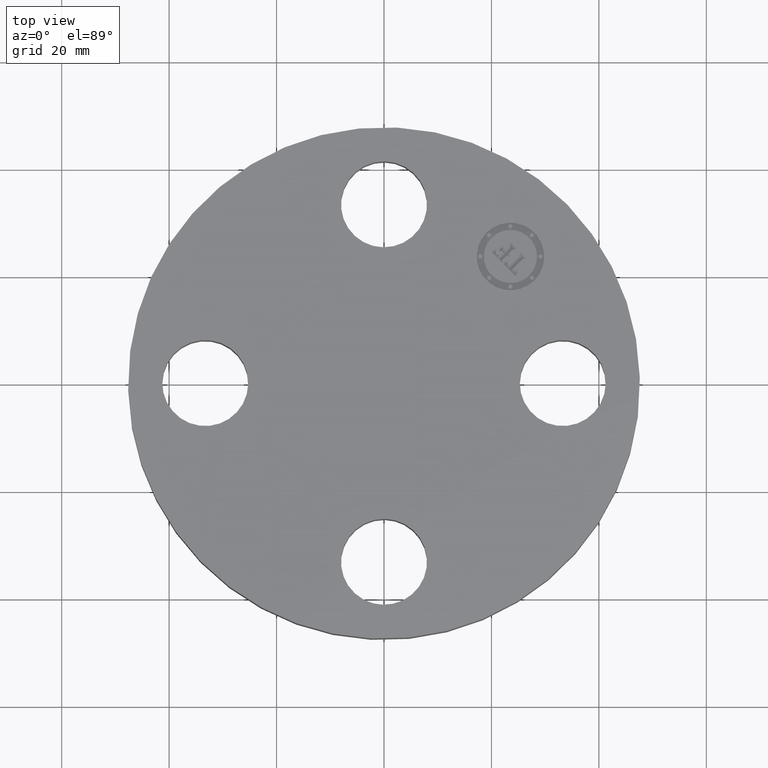
[diagram: clean part render]
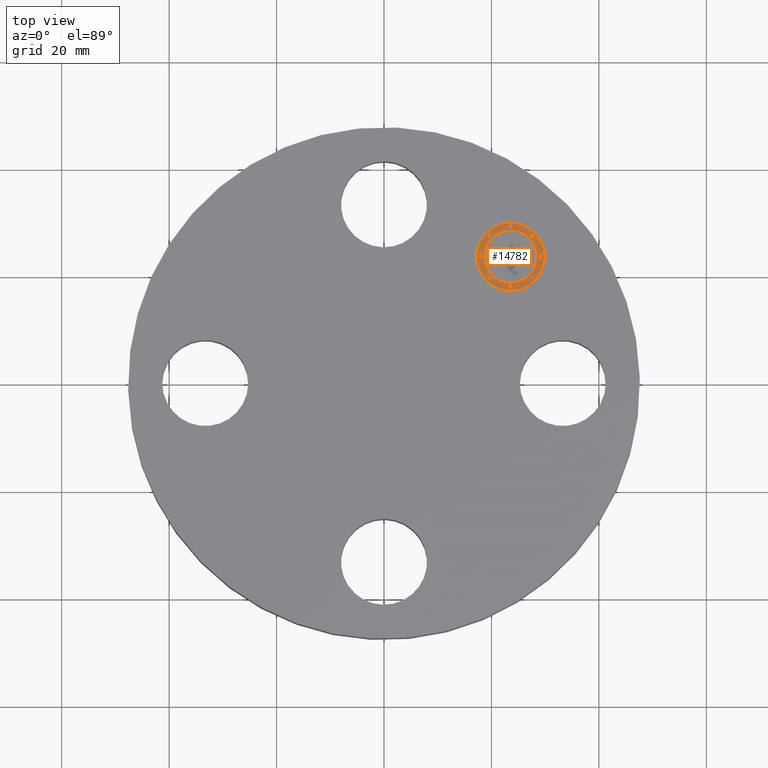
[diagram: same view with one face highlighted and labeled with its STEP entity id]
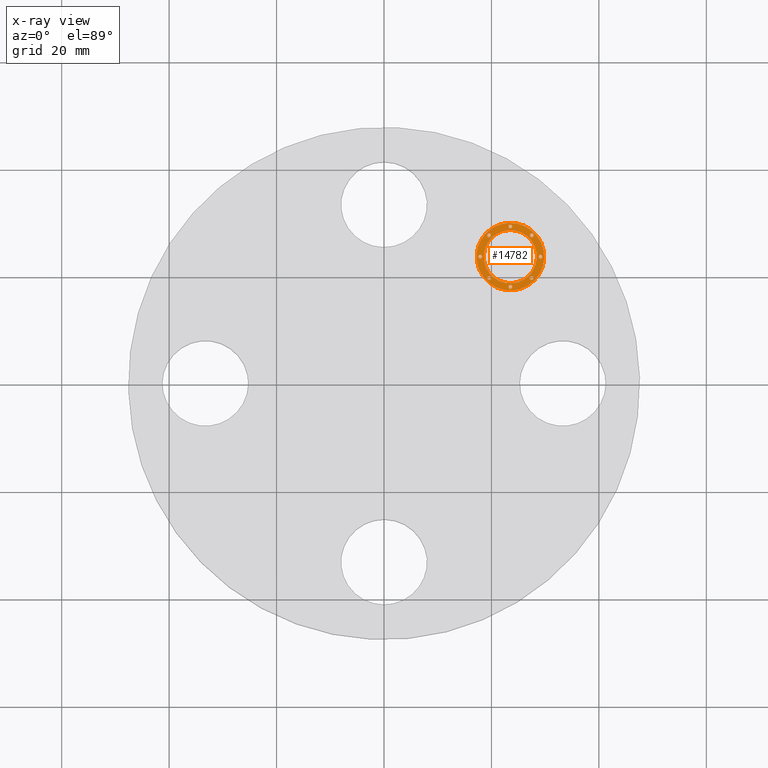
[diagram: x-ray of the same camera — body ghosted, the highlighted face saturated]
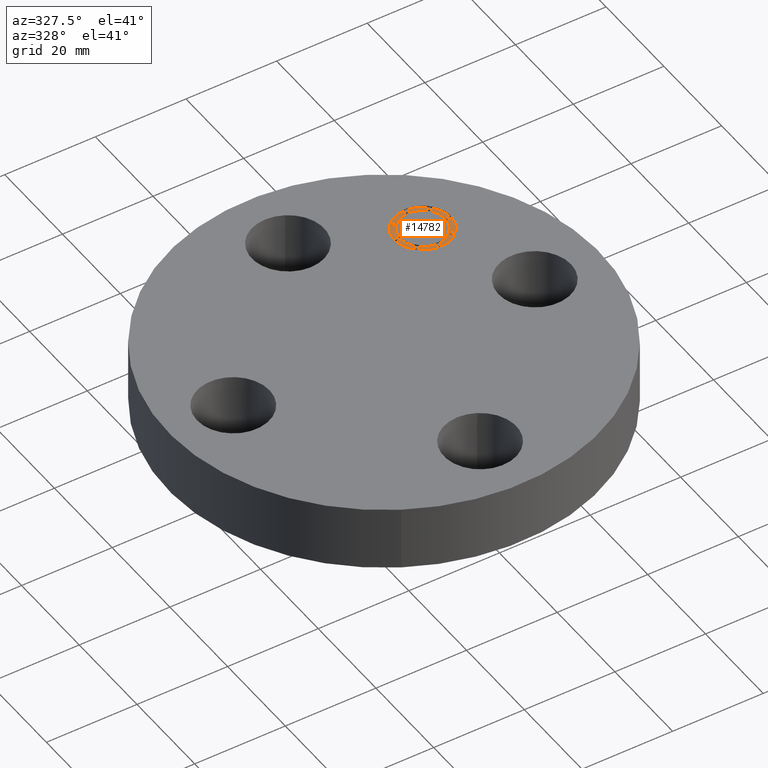
[diagram: same view with one face highlighted and labeled with its STEP entity id]
A machine part, top view. The second image highlights one B-rep face of the part: STEP entity #14782.
The next image is the same camera in x-ray: the body ghosted, the highlighted face saturated — about 0% of this face is hidden behind the body in this view.
A second angle (auxiliary view) of the same face is appended — the face is thin or edge-on in the first view.
In plain terms, the highlighted planar face has unit normal (0, -0, 1).
Its self-contained STEP definition (entity closure, byte-faithful):
#3433=AXIS2_PLACEMENT_3D('Plane Axis2P3D',#3430,#3431,#3432) ;
#14604=AXIS2_PLACEMENT_3D('Circle Axis2P3D',#14602,#14603,$) ;
#14613=AXIS2_PLACEMENT_3D('Circle Axis2P3D',#14611,#14612,$) ;
#14622=AXIS2_PLACEMENT_3D('Circle Axis2P3D',#14620,#14621,$) ;
#14631=AXIS2_PLACEMENT_3D('Circle Axis2P3D',#14629,#14630,$) ;
#14640=AXIS2_PLACEMENT_3D('Circle Axis2P3D',#14638,#14639,$) ;
#14649=AXIS2_PLACEMENT_3D('Circle Axis2P3D',#14647,#14648,$) ;
#14658=AXIS2_PLACEMENT_3D('Circle Axis2P3D',#14656,#14657,$) ;
#14667=AXIS2_PLACEMENT_3D('Circle Axis2P3D',#14665,#14666,$) ;
#14676=AXIS2_PLACEMENT_3D('Circle Axis2P3D',#14674,#14675,$) ;
#14685=AXIS2_PLACEMENT_3D('Circle Axis2P3D',#14683,#14684,$) ;
#14694=AXIS2_PLACEMENT_3D('Circle Axis2P3D',#14692,#14693,$) ;
#14703=AXIS2_PLACEMENT_3D('Circle Axis2P3D',#14701,#14702,$) ;
#14712=AXIS2_PLACEMENT_3D('Circle Axis2P3D',#14710,#14711,$) ;
#14721=AXIS2_PLACEMENT_3D('Circle Axis2P3D',#14719,#14720,$) ;
#14730=AXIS2_PLACEMENT_3D('Circle Axis2P3D',#14728,#14729,$) ;
#14739=AXIS2_PLACEMENT_3D('Circle Axis2P3D',#14737,#14738,$) ;
#14748=AXIS2_PLACEMENT_3D('Circle Axis2P3D',#14746,#14747,$) ;
#14757=AXIS2_PLACEMENT_3D('Circle Axis2P3D',#14755,#14756,$) ;
#14766=AXIS2_PLACEMENT_3D('Circle Axis2P3D',#14764,#14765,$) ;
#14775=AXIS2_PLACEMENT_3D('Circle Axis2P3D',#14773,#14774,$) ;
#3430=CARTESIAN_POINT('Axis2P3D Location',(0.,0.,0.545000000002)) ;
#14602=CARTESIAN_POINT('Axis2P3D Location',(0.926309883358,0.926309883358,0.545000000002)) ;
#14606=CARTESIAN_POINT('Vertex',(0.751300955014,1.1013188117,0.545000000002)) ;
#14608=CARTESIAN_POINT('Vertex',(1.1013188117,0.751300955014,0.545000000002)) ;
#14611=CARTESIAN_POINT('Axis2P3D Location',(0.926309883358,0.926309883358,0.545000000002)) ;
#14620=CARTESIAN_POINT('Axis2P3D Location',(0.926309883358,0.926309883358,0.545000000002)) ;
#14624=CARTESIAN_POINT('Vertex',(1.06419570569,0.788424061026,0.545000000002)) ;
#14626=CARTESIAN_POINT('Vertex',(0.788424061026,1.06419570569,0.545000000002)) ;
#14629=CARTESIAN_POINT('Axis2P3D Location',(0.926309883358,0.926309883358,0.545000000002)) ;
#14638=CARTESIAN_POINT('Axis2P3D Location',(0.76986250802,0.76986250802,0.545000000002)) ;
#14642=CARTESIAN_POINT('Vertex',(0.780469109738,0.759255906302,0.545000000002)) ;
#14644=CARTESIAN_POINT('Vertex',(0.759255906302,0.780469109738,0.545000000002)) ;
#14647=CARTESIAN_POINT('Axis2P3D Location',(0.76986250802,0.76986250802,0.545000000002)) ;
#14656=CARTESIAN_POINT('Axis2P3D Location',(0.76986250802,1.0827572587,0.545000000002)) ;
#14660=CARTESIAN_POINT('Vertex',(0.780469109738,1.07215065698,0.545000000002)) ;
#14662=CARTESIAN_POINT('Vertex',(0.759255906302,1.09336386041,0.545000000002)) ;
#14665=CARTESIAN_POINT('Axis2P3D Location',(0.76986250802,1.0827572587,0.545000000002)) ;
#14674=CARTESIAN_POINT('Axis2P3D Location',(0.705059883357,0.926309883358,0.545000000002)) ;
#14678=CARTESIAN_POINT('Vertex',(0.715666485075,0.91570328164,0.545000000002)) ;
#14680=CARTESIAN_POINT('Vertex',(0.694453281639,0.936916485076,0.545000000002)) ;
#14683=CARTESIAN_POINT('Axis2P3D Location',(0.705059883357,0.926309883358,0.545000000002)) ;
#14692=CARTESIAN_POINT('Axis2P3D Location',(1.0827572587,1.0827572587,0.545000000002)) ;
#14696=CARTESIAN_POINT('Vertex',(1.09336386041,1.07215065698,0.545000000002)) ;
#14698=CARTESIAN_POINT('Vertex',(1.07215065698,1.09336386041,0.545000000002)) ;
#14701=CARTESIAN_POINT('Axis2P3D Location',(1.0827572587,1.0827572587,0.545000000002)) ;
#14710=CARTESIAN_POINT('Axis2P3D Location',(0.926309883358,1.14755988336,0.545000000002)) ;
#14714=CARTESIAN_POINT('Vertex',(0.936916485076,1.13695328164,0.545000000002)) ;
#14716=CARTESIAN_POINT('Vertex',(0.91570328164,1.15816648508,0.545000000002)) ;
#14719=CARTESIAN_POINT('Axis2P3D Location',(0.926309883358,1.14755988336,0.545000000002)) ;
#14728=CARTESIAN_POINT('Axis2P3D Location',(1.0827572587,0.76986250802,0.545000000002)) ;
#14732=CARTESIAN_POINT('Vertex',(1.07215065698,0.780469109738,0.545000000002)) ;
#14734=CARTESIAN_POINT('Vertex',(1.09336386041,0.759255906302,0.545000000002)) ;
#14737=CARTESIAN_POINT('Axis2P3D Location',(1.0827572587,0.76986250802,0.545000000002)) ;
#14746=CARTESIAN_POINT('Axis2P3D Location',(0.926309883358,0.705059883357,0.545000000002)) ;
#14750=CARTESIAN_POINT('Vertex',(0.91570328164,0.715666485075,0.545000000002)) ;
#14752=CARTESIAN_POINT('Vertex',(0.936916485076,0.694453281639,0.545000000002)) ;
#14755=CARTESIAN_POINT('Axis2P3D Location',(0.926309883358,0.705059883357,0.545000000002)) ;
#14764=CARTESIAN_POINT('Axis2P3D Location',(1.14755988336,0.926309883358,0.545000000002)) ;
#14768=CARTESIAN_POINT('Vertex',(1.13695328164,0.936916485076,0.545000000002)) ;
#14770=CARTESIAN_POINT('Vertex',(1.15816648508,0.91570328164,0.545000000002)) ;
#14773=CARTESIAN_POINT('Axis2P3D Location',(1.14755988336,0.926309883358,0.545000000002)) ;
#3431=DIRECTION('Axis2P3D Direction',(0.,-0.,0.0393700787402)) ;
#3432=DIRECTION('Axis2P3D XDirection',(0.027838849653,0.027838849653,0.)) ;
#14603=DIRECTION('Axis2P3D Direction',(0.,-0.,0.0393700787402)) ;
#14612=DIRECTION('Axis2P3D Direction',(0.,-0.,0.0393700787402)) ;
#14621=DIRECTION('Axis2P3D Direction',(0.,-0.,0.0393700787402)) ;
#14630=DIRECTION('Axis2P3D Direction',(0.,-0.,0.0393700787402)) ;
#14639=DIRECTION('Axis2P3D Direction',(0.,-0.,0.0393700787402)) ;
#14648=DIRECTION('Axis2P3D Direction',(0.,-0.,0.0393700787402)) ;
#14657=DIRECTION('Axis2P3D Direction',(0.,-0.,0.0393700787402)) ;
#14666=DIRECTION('Axis2P3D Direction',(0.,-0.,0.0393700787402)) ;
#14675=DIRECTION('Axis2P3D Direction',(0.,-0.,0.0393700787402)) ;
#14684=DIRECTION('Axis2P3D Direction',(0.,-0.,0.0393700787402)) ;
#14693=DIRECTION('Axis2P3D Direction',(0.,-0.,0.0393700787402)) ;
#14702=DIRECTION('Axis2P3D Direction',(0.,-0.,0.0393700787402)) ;
#14711=DIRECTION('Axis2P3D Direction',(0.,-0.,0.0393700787402)) ;
#14720=DIRECTION('Axis2P3D Direction',(0.,-0.,0.0393700787402)) ;
#14729=DIRECTION('Axis2P3D Direction',(0.,-0.,0.0393700787402)) ;
#14738=DIRECTION('Axis2P3D Direction',(0.,-0.,0.0393700787402)) ;
#14747=DIRECTION('Axis2P3D Direction',(0.,-0.,0.0393700787402)) ;
#14756=DIRECTION('Axis2P3D Direction',(0.,-0.,0.0393700787402)) ;
#14765=DIRECTION('Axis2P3D Direction',(0.,-0.,0.0393700787402)) ;
#14774=DIRECTION('Axis2P3D Direction',(0.,-0.,0.0393700787402)) ;
#14617=ORIENTED_EDGE('',*,*,#14610,.T.) ;
#14618=ORIENTED_EDGE('',*,*,#14615,.T.) ;
#14635=ORIENTED_EDGE('',*,*,#14628,.F.) ;
#14636=ORIENTED_EDGE('',*,*,#14633,.F.) ;
#14653=ORIENTED_EDGE('',*,*,#14646,.F.) ;
#14654=ORIENTED_EDGE('',*,*,#14651,.F.) ;
#14671=ORIENTED_EDGE('',*,*,#14664,.F.) ;
#14672=ORIENTED_EDGE('',*,*,#14669,.F.) ;
#14689=ORIENTED_EDGE('',*,*,#14682,.F.) ;
#14690=ORIENTED_EDGE('',*,*,#14687,.F.) ;
#14707=ORIENTED_EDGE('',*,*,#14700,.F.) ;
#14708=ORIENTED_EDGE('',*,*,#14705,.F.) ;
#14725=ORIENTED_EDGE('',*,*,#14718,.F.) ;
#14726=ORIENTED_EDGE('',*,*,#14723,.F.) ;
#14743=ORIENTED_EDGE('',*,*,#14736,.F.) ;
#14744=ORIENTED_EDGE('',*,*,#14741,.F.) ;
#14761=ORIENTED_EDGE('',*,*,#14754,.F.) ;
#14762=ORIENTED_EDGE('',*,*,#14759,.F.) ;
#14779=ORIENTED_EDGE('',*,*,#14772,.F.) ;
#14780=ORIENTED_EDGE('',*,*,#14777,.F.) ;
#14637=FACE_BOUND('',#14634,.T.) ;
#14655=FACE_BOUND('',#14652,.T.) ;
#14673=FACE_BOUND('',#14670,.T.) ;
#14691=FACE_BOUND('',#14688,.T.) ;
#14709=FACE_BOUND('',#14706,.T.) ;
#14727=FACE_BOUND('',#14724,.T.) ;
#14745=FACE_BOUND('',#14742,.T.) ;
#14763=FACE_BOUND('',#14760,.T.) ;
#14781=FACE_BOUND('',#14778,.T.) ;
#14782=ADVANCED_FACE('PartBody',(#14619,#14637,#14655,#14673,#14691,#14709,#14727,#14745,#14763,#14781),#3434,.T.) ;
#14605=CIRCLE('generated circle',#14604,0.247500000001) ;
#14614=CIRCLE('generated circle',#14613,0.247500000001) ;
#14623=CIRCLE('generated circle',#14622,0.195000000001) ;
#14632=CIRCLE('generated circle',#14631,0.195000000001) ;
#14641=CIRCLE('generated circle',#14640,0.0150000000001) ;
#14650=CIRCLE('generated circle',#14649,0.0150000000001) ;
#14659=CIRCLE('generated circle',#14658,0.0150000000001) ;
#14668=CIRCLE('generated circle',#14667,0.0150000000001) ;
#14677=CIRCLE('generated circle',#14676,0.0150000000001) ;
#14686=CIRCLE('generated circle',#14685,0.0150000000001) ;
#14695=CIRCLE('generated circle',#14694,0.0150000000001) ;
#14704=CIRCLE('generated circle',#14703,0.0150000000001) ;
#14713=CIRCLE('generated circle',#14712,0.0150000000001) ;
#14722=CIRCLE('generated circle',#14721,0.0150000000001) ;
#14731=CIRCLE('generated circle',#14730,0.0150000000001) ;
#14740=CIRCLE('generated circle',#14739,0.0150000000001) ;
#14749=CIRCLE('generated circle',#14748,0.0150000000001) ;
#14758=CIRCLE('generated circle',#14757,0.0150000000001) ;
#14767=CIRCLE('generated circle',#14766,0.0150000000001) ;
#14776=CIRCLE('generated circle',#14775,0.0150000000001) ;
#14610=EDGE_CURVE('',#14607,#14609,#14605,.T.) ;
#14615=EDGE_CURVE('',#14609,#14607,#14614,.T.) ;
#14628=EDGE_CURVE('',#14625,#14627,#14623,.T.) ;
#14633=EDGE_CURVE('',#14627,#14625,#14632,.T.) ;
#14646=EDGE_CURVE('',#14643,#14645,#14641,.T.) ;
#14651=EDGE_CURVE('',#14645,#14643,#14650,.T.) ;
#14664=EDGE_CURVE('',#14661,#14663,#14659,.T.) ;
#14669=EDGE_CURVE('',#14663,#14661,#14668,.T.) ;
#14682=EDGE_CURVE('',#14679,#14681,#14677,.T.) ;
#14687=EDGE_CURVE('',#14681,#14679,#14686,.T.) ;
#14700=EDGE_CURVE('',#14697,#14699,#14695,.T.) ;
#14705=EDGE_CURVE('',#14699,#14697,#14704,.T.) ;
#14718=EDGE_CURVE('',#14715,#14717,#14713,.T.) ;
#14723=EDGE_CURVE('',#14717,#14715,#14722,.T.) ;
#14736=EDGE_CURVE('',#14733,#14735,#14731,.T.) ;
#14741=EDGE_CURVE('',#14735,#14733,#14740,.T.) ;
#14754=EDGE_CURVE('',#14751,#14753,#14749,.T.) ;
#14759=EDGE_CURVE('',#14753,#14751,#14758,.T.) ;
#14772=EDGE_CURVE('',#14769,#14771,#14767,.T.) ;
#14777=EDGE_CURVE('',#14771,#14769,#14776,.T.) ;
#14616=EDGE_LOOP('',(#14617,#14618)) ;
#14634=EDGE_LOOP('',(#14635,#14636)) ;
#14652=EDGE_LOOP('',(#14653,#14654)) ;
#14670=EDGE_LOOP('',(#14671,#14672)) ;
#14688=EDGE_LOOP('',(#14689,#14690)) ;
#14706=EDGE_LOOP('',(#14707,#14708)) ;
#14724=EDGE_LOOP('',(#14725,#14726)) ;
#14742=EDGE_LOOP('',(#14743,#14744)) ;
#14760=EDGE_LOOP('',(#14761,#14762)) ;
#14778=EDGE_LOOP('',(#14779,#14780)) ;
#14619=FACE_OUTER_BOUND('',#14616,.T.) ;
#3434=PLANE('',#3433) ;
#14607=VERTEX_POINT('',#14606) ;
#14609=VERTEX_POINT('',#14608) ;
#14625=VERTEX_POINT('',#14624) ;
#14627=VERTEX_POINT('',#14626) ;
#14643=VERTEX_POINT('',#14642) ;
#14645=VERTEX_POINT('',#14644) ;
#14661=VERTEX_POINT('',#14660) ;
#14663=VERTEX_POINT('',#14662) ;
#14679=VERTEX_POINT('',#14678) ;
#14681=VERTEX_POINT('',#14680) ;
#14697=VERTEX_POINT('',#14696) ;
#14699=VERTEX_POINT('',#14698) ;
#14715=VERTEX_POINT('',#14714) ;
#14717=VERTEX_POINT('',#14716) ;
#14733=VERTEX_POINT('',#14732) ;
#14735=VERTEX_POINT('',#14734) ;
#14751=VERTEX_POINT('',#14750) ;
#14753=VERTEX_POINT('',#14752) ;
#14769=VERTEX_POINT('',#14768) ;
#14771=VERTEX_POINT('',#14770) ;